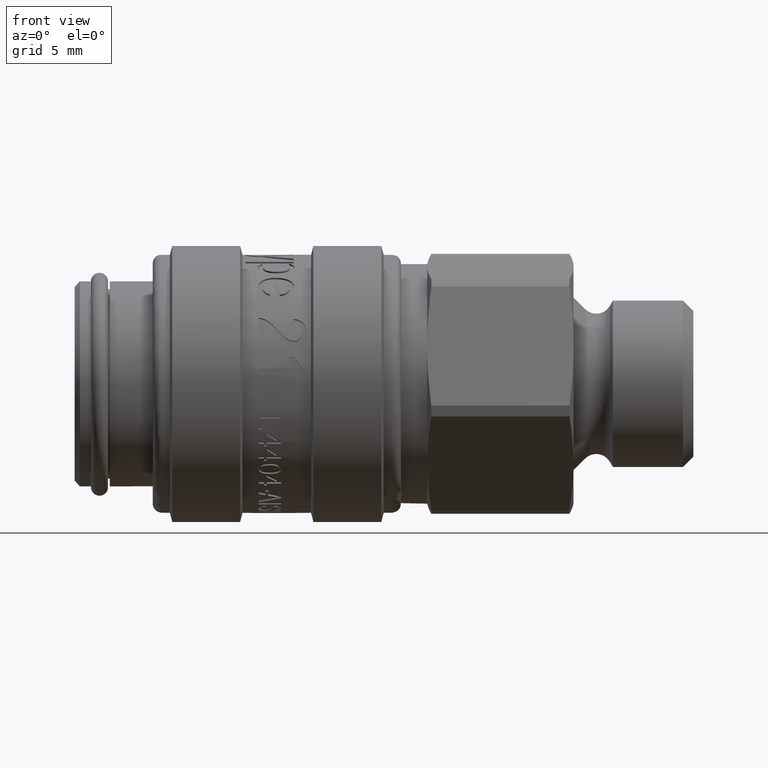
[diagram: clean part render]
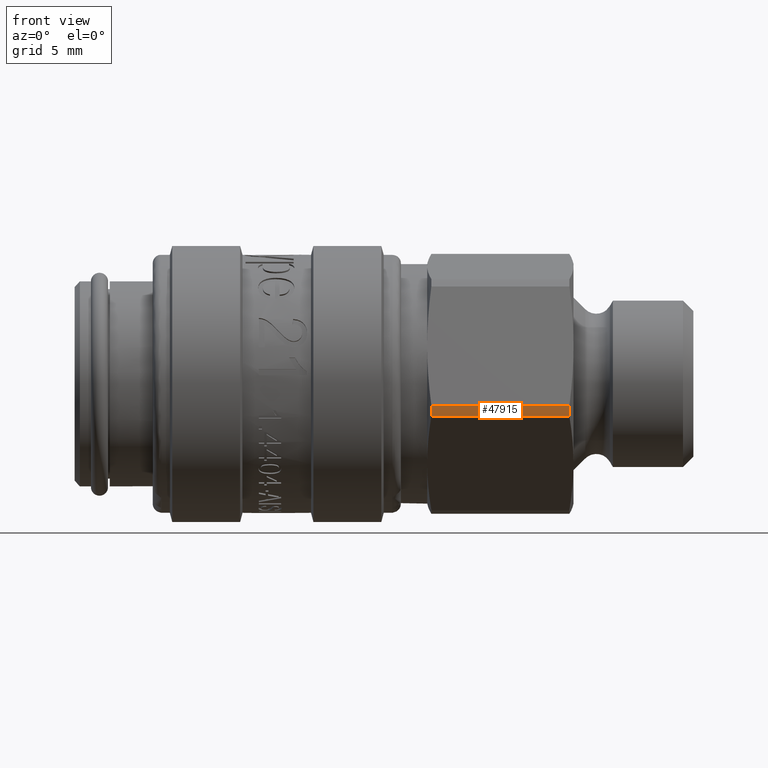
[diagram: same view with one face highlighted and labeled with its STEP entity id]
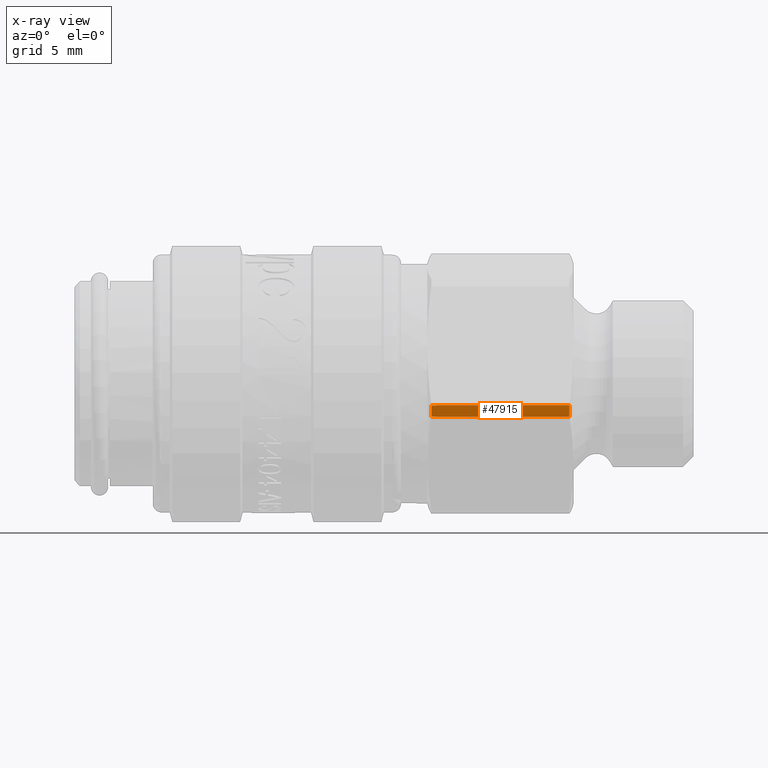
[diagram: x-ray of the same camera — body ghosted, the highlighted face saturated]
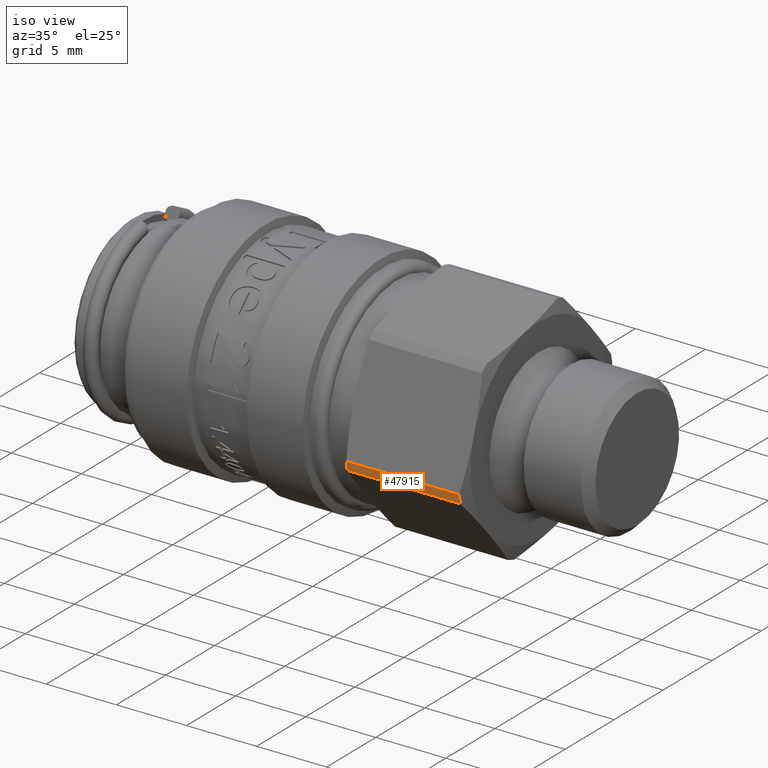
[diagram: same view with one face highlighted and labeled with its STEP entity id]
A machine part, front view. The second image highlights one B-rep face of the part: STEP entity #47915.
The next image is the same camera in x-ray: the body ghosted, the highlighted face saturated — about 0% of this face is hidden behind the body in this view.
A second angle (iso view) of the same face is appended — the face is thin or edge-on in the first view.
In plain terms, the highlighted cylindrical surface (partial cylindrical patch) has radius 7.9 mm, axis along (-1, 0, 0).
Its self-contained STEP definition (entity closure, byte-faithful):
#47701=CARTESIAN_POINT('',(28.908845726811986,-7.798410477154816,-1.262851547016513));
#47702=VERTEX_POINT('',#47701);
#47716=CARTESIAN_POINT('',(28.908845726811986,-7.666439100509034,-1.906754183995997));
#47717=VERTEX_POINT('',#47716);
#47718=CARTESIAN_POINT('',(28.908845726811986,0.0,0.0));
#47719=DIRECTION('',(-1.0,0.0,0.0));
#47720=DIRECTION('',(0.0,0.948780542108724,-0.315935884185188));
#47721=AXIS2_PLACEMENT_3D('',#47718,#47719,#47720);
#47722=CIRCLE('',#47721,7.9);
#47723=EDGE_CURVE('',#47717,#47702,#47722,.T.);
#47884=CARTESIAN_POINT('',(24.875,0.0,0.0));
#47885=DIRECTION('',(-1.0,0.0,0.0));
#47886=DIRECTION('',(0.0,0.948780542108724,-0.315935884185188));
#47887=AXIS2_PLACEMENT_3D('',#47884,#47885,#47886);
#47888=CYLINDRICAL_SURFACE('',#47887,7.9);
#47889=CARTESIAN_POINT('',(20.841154273188014,-7.798410477154816,-1.262851547016513));
#47890=VERTEX_POINT('',#47889);
#47891=CARTESIAN_POINT('',(28.90884572681199,-7.798410477154816,-1.262851547016513));
#47892=DIRECTION('',(-1.0,0.0,0.0));
#47893=VECTOR('',#47892,8.067691453623972);
#47894=LINE('',#47891,#47893);
#47895=EDGE_CURVE('',#47702,#47890,#47894,.T.);
#47896=ORIENTED_EDGE('',*,*,#47895,.T.);
#47897=CARTESIAN_POINT('',(20.841154273188014,-7.666439100509034,-1.906754183995997));
#47898=VERTEX_POINT('',#47897);
#47899=CARTESIAN_POINT('',(20.841154273188014,0.0,0.0));
#47900=DIRECTION('',(-1.0,0.0,0.0));
#47901=DIRECTION('',(0.0,0.948780542108724,-0.315935884185188));
#47902=AXIS2_PLACEMENT_3D('',#47899,#47900,#47901);
#47903=CIRCLE('',#47902,7.9);
#47904=EDGE_CURVE('',#47898,#47890,#47903,.T.);
#47905=ORIENTED_EDGE('',*,*,#47904,.F.);
#47906=CARTESIAN_POINT('',(20.841154273188017,-7.666439100509034,-1.906754183995997));
#47907=DIRECTION('',(1.0,0.0,0.0));
#47908=VECTOR('',#47907,8.067691453623972);
#47909=LINE('',#47906,#47908);
#47910=EDGE_CURVE('',#47898,#47717,#47909,.T.);
#47911=ORIENTED_EDGE('',*,*,#47910,.T.);
#47912=ORIENTED_EDGE('',*,*,#47723,.T.);
#47913=EDGE_LOOP('',(#47896,#47905,#47911,#47912));
#47914=FACE_OUTER_BOUND('',#47913,.T.);
#47915=ADVANCED_FACE('',(#47914),#47888,.T.);